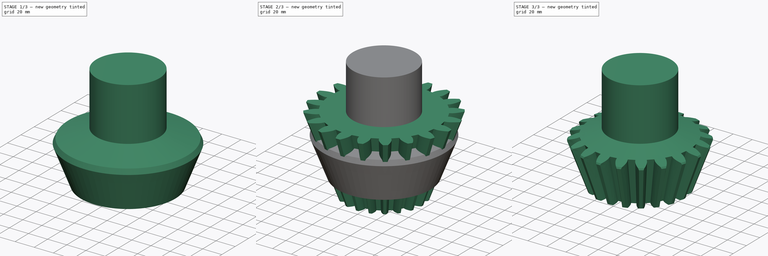
[diagram: build sequence overview — one tinted view per stage of 3, left to right]
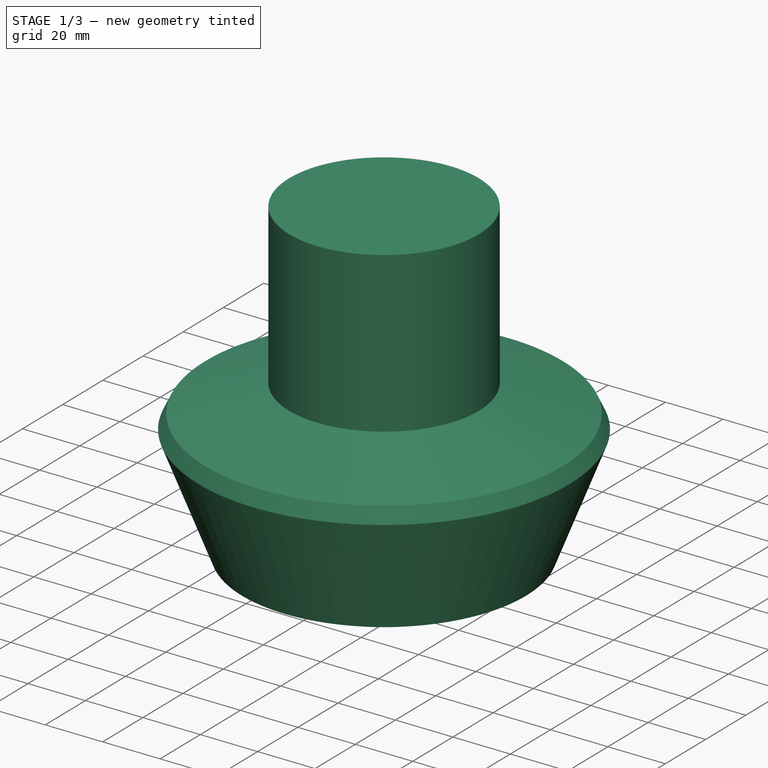
[diagram: stage 1 of 3 — iso view after this stage's code; geometry added in this stage tinted green]
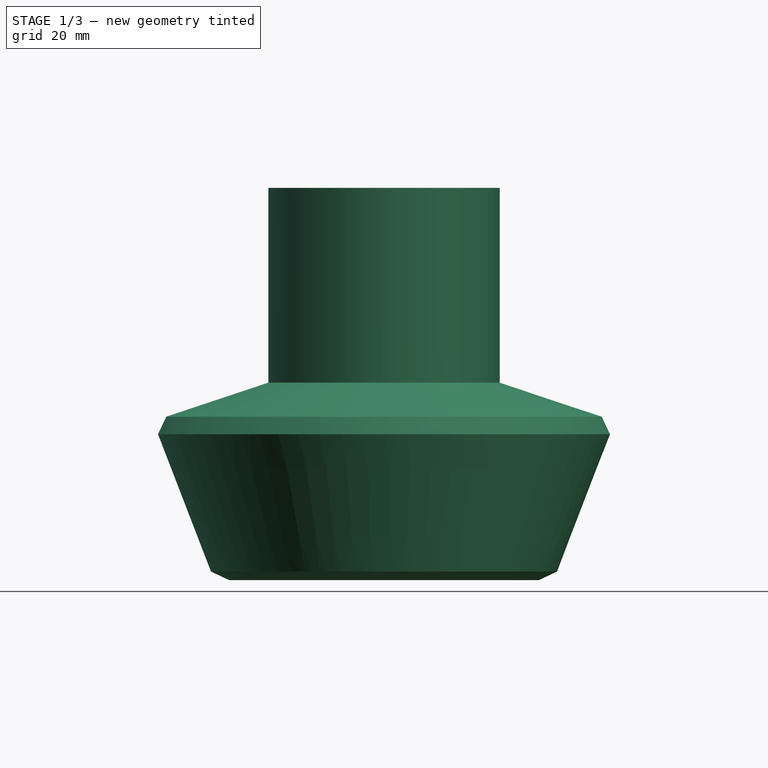
[diagram: stage 1 of 3 — front view after this stage's code; geometry added in this stage tinted green]
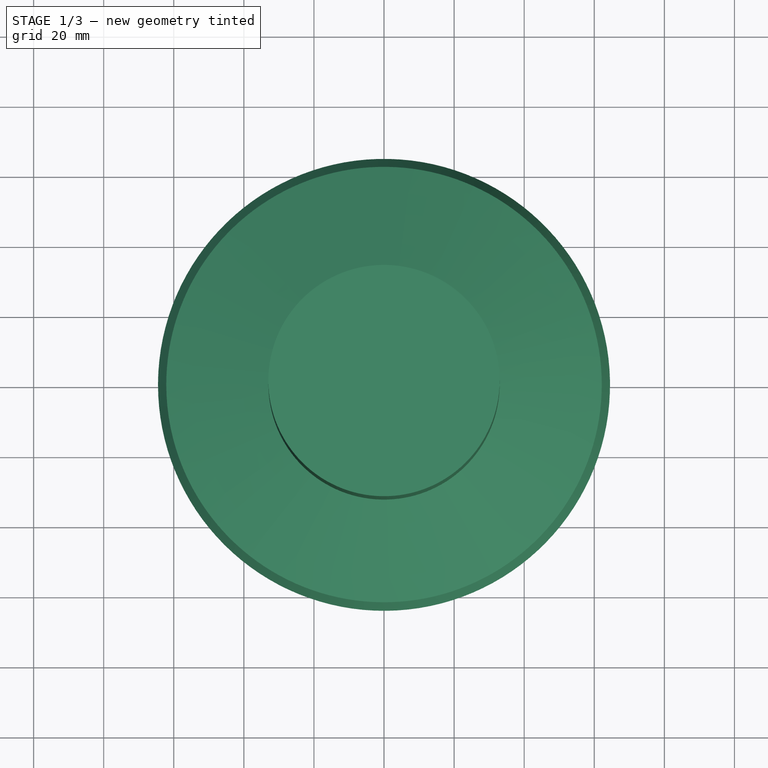
[diagram: stage 1 of 3 — top view after this stage's code; geometry added in this stage tinted green]
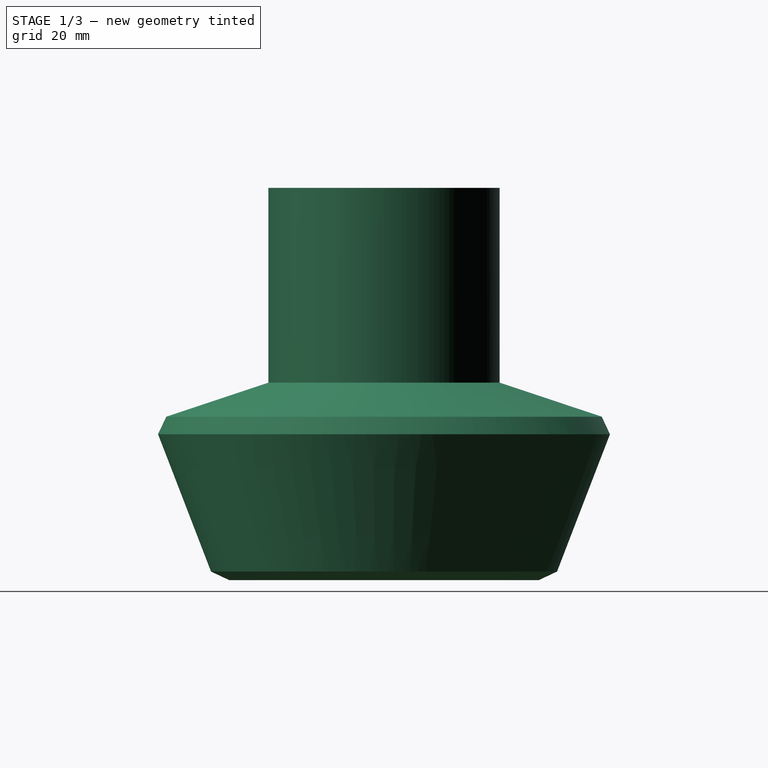
[diagram: stage 1 of 3 — right view after this stage's code; geometry added in this stage tinted green]
FCSTD DOCUMENT  (FreeCAD 0.16R5794 (Git))
Label: bevel_gear_example
License: All rights reserved
LicenseURL: http://en.wikipedia.org/wiki/All_rights_reserved
objects: Sketcher::SketchObject×2, Part::FeaturePython×1, PartDesign::Revolution×1, PartDesign::Pad×1, PartDesign::Chamfer×1, Part::MultiCommon×1
note: 9 computed .brp shape members not serialized (recipe doc carries the construction recipe); baked Part::Feature solids carry a one-line shape summary decoded from their .brp

FEATURE [Sketcher::SketchObject] Sketch
  Placement = pos=(0,0,0) rot=(-1,0,0;4.71239rad)
  sketch-geometry (13):
    g0: LineSegment [constr] StartX=0 StartY=0 StartZ=0 EndX=-77.0789 EndY=231.237 EndZ=0
    g1: LineSegment [constr] StartX=0 StartY=0 StartZ=0 EndX=-243.745 EndY=0 EndZ=0
    g2: LineSegment [constr] StartX=0 StartY=0 StartZ=0 EndX=0 EndY=243.745 EndZ=0
    g3: LineSegment [constr] StartX=-50 StartY=0 StartZ=0 EndX=-50 EndY=150 EndZ=0
    g4: LineSegment [constr] StartX=-50 StartY=150 StartZ=0 EndX=0 EndY=150 EndZ=0
    g5: LineSegment StartX=-65.9318 StartY=170.985 StartZ=0 EndX=-47.9429 EndY=124.333 EndZ=0
    g6: LineSegment StartX=-47.9429 StartY=124.333 StartZ=0 EndX=-24.0033 EndY=132.313 EndZ=0
    g7: LineSegment StartX=-24.0033 StartY=132.313 StartZ=0 EndX=0 EndY=132.313 EndZ=0
    g8: LineSegment StartX=0 StartY=132.313 StartZ=0 EndX=0 EndY=237.562 EndZ=0
    g9: LineSegment StartX=0 StartY=237.562 StartZ=0 EndX=-33.0097 EndY=237.562 EndZ=0
    g10: LineSegment StartX=-33.0097 StartY=237.562 StartZ=0 EndX=-33.0097 EndY=181.959 EndZ=0
    g11: LineSegment StartX=-33.0097 StartY=181.959 StartZ=0 EndX=-65.9318 EndY=170.985 EndZ=0
    g12: LineSegment [constr] StartX=-33.0097 StartY=181.959 StartZ=0 EndX=-24.0033 EndY=132.313 EndZ=0
  constraints (36):
    c: Coincident(g-1,g0)
    c: Coincident(g-1,g1)
    c: PointOnObject(g1,g-1)
    c: Equal(g2,g0)
    c: Equal(g0,g1)
    c: Coincident(g2,g-1)
    c: PointOnObject(g2,g-2)
    c: PointOnObject(g3,g1)
    c: PointOnObject(g3,g0)
    c: Coincident(g4,g3)
    c: PointOnObject(g4,g2)
    c: Perpendicular(g2,g4)
    c: Perpendicular(g1,g3)
    c: DistanceX(g4) = 50
    c: DistanceY(g3) = 150
    c: Angle(g2,g0) = 0.321751
    c: Coincident(g5,g6)
    c: Coincident(g6,g7)
    c: PointOnObject(g7,g2)
    c: Horizontal(g7)
    c: Coincident(g7,g8)
    c: PointOnObject(g8,g2)
    c: Coincident(g8,g9)
    c: Horizontal(g9)
    c: Coincident(g9,g10)
    c: Vertical(g10)
    c: Coincident(g10,g11)
    c: Coincident(g11,g5)
    c: PointOnObject(g-1,g5)
    c: Perpendicular(g0,g11)
    c: Perpendicular(g0,g6)
    c: Coincident(g12,g10)
    c: Coincident(g12,g6)
    c: PointOnObject(g-1,g12)
    c: Distance(g3,g6) = 25
    c: Distance(g5) = 50
FEATURE [PartDesign::Revolution] Revolution
  Angle = 360
  Axis = (0,0,1)
  Base = (0,0,0)
  Placement = pos=(0,0,0) rot=(-1,0,0;4.71239rad)
  ReferenceAxis = -> Sketch [V_Axis]
  Sketch = -> Sketch
FEATURE [PartDesign::Chamfer] Chamfer
  Base = -> Revolution [Edge2,Edge1]
  Placement = pos=(0,0,0) rot=(-1,0,0;4.71239rad)
  Size = 4
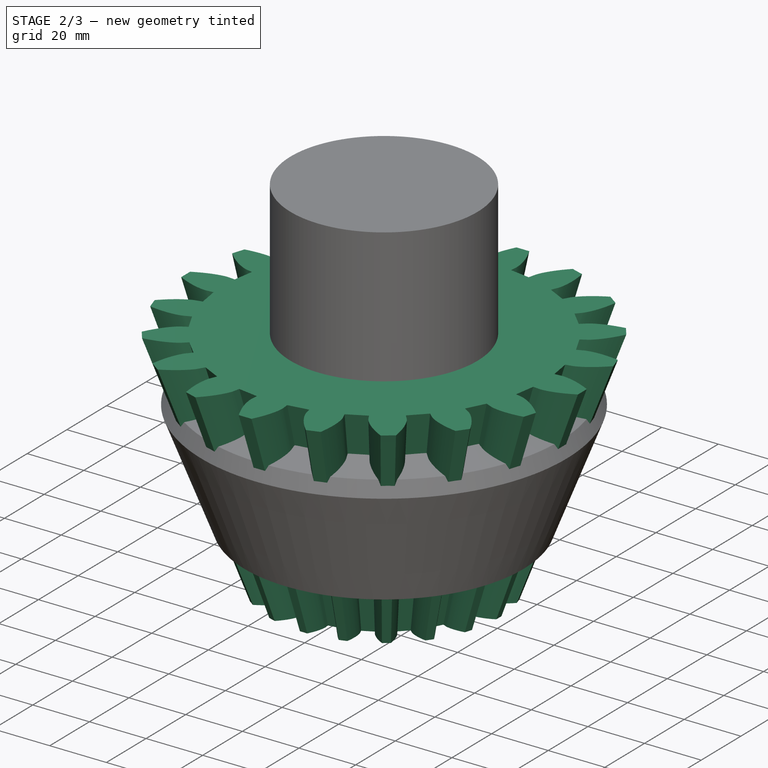
[diagram: stage 2 of 3 — iso view after this stage's code; geometry added in this stage tinted green]
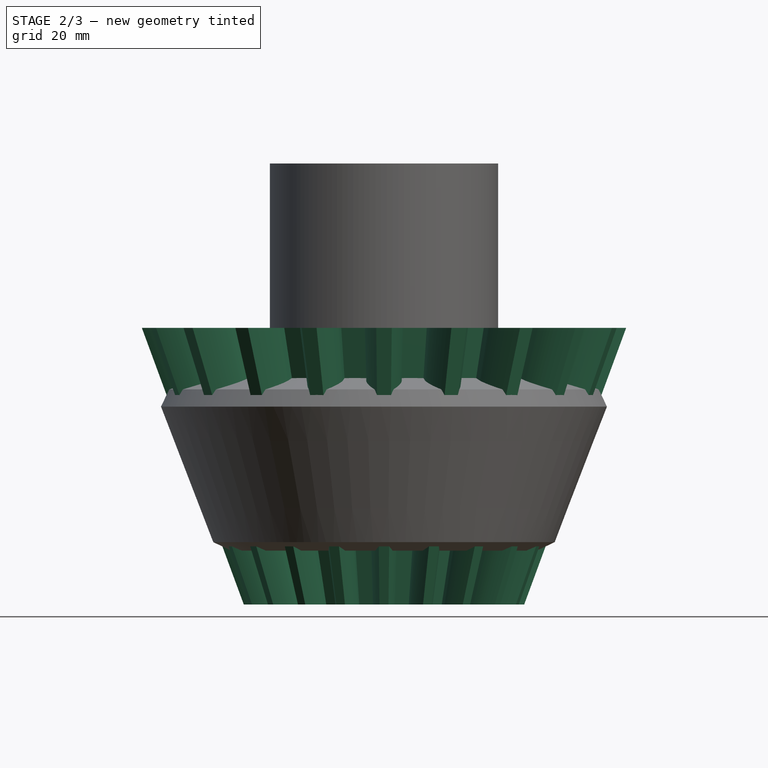
[diagram: stage 2 of 3 — front view after this stage's code; geometry added in this stage tinted green]
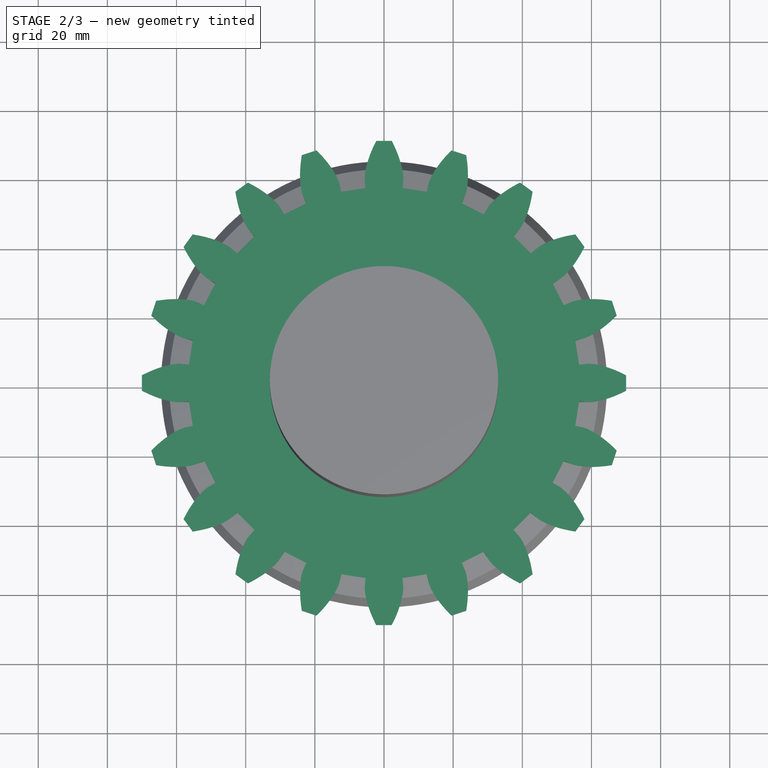
[diagram: stage 2 of 3 — top view after this stage's code; geometry added in this stage tinted green]
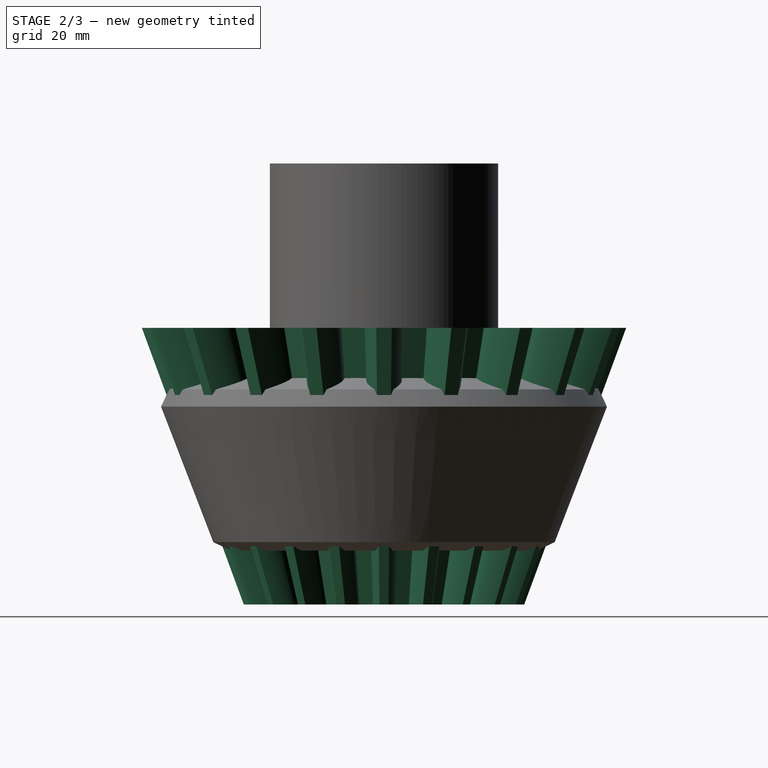
[diagram: stage 2 of 3 — right view after this stage's code; geometry added in this stage tinted green]
FEATURE [Part::FeaturePython] bevel_gear  # WARN: FeaturePython — macro-defined, semantics opaque (R4)
  backlash = 0
  clearance = 0.1
  height = 80
  m = 5
  numpoints = 6
  pitch_angle = 18.43
  pressure_angle = 20
  teeth = 20
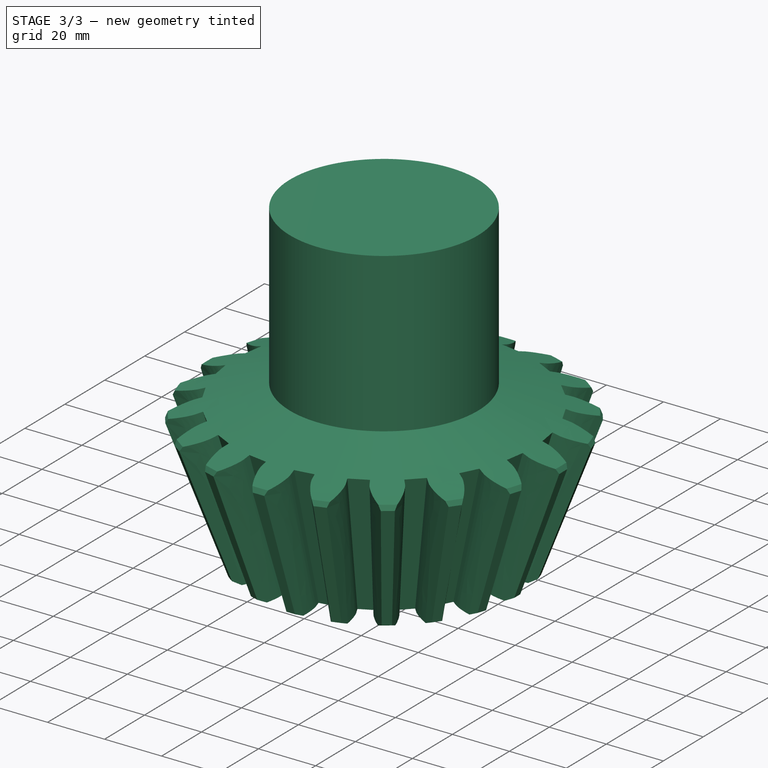
[diagram: stage 3 of 3 — iso view after this stage's code; geometry added in this stage tinted green]
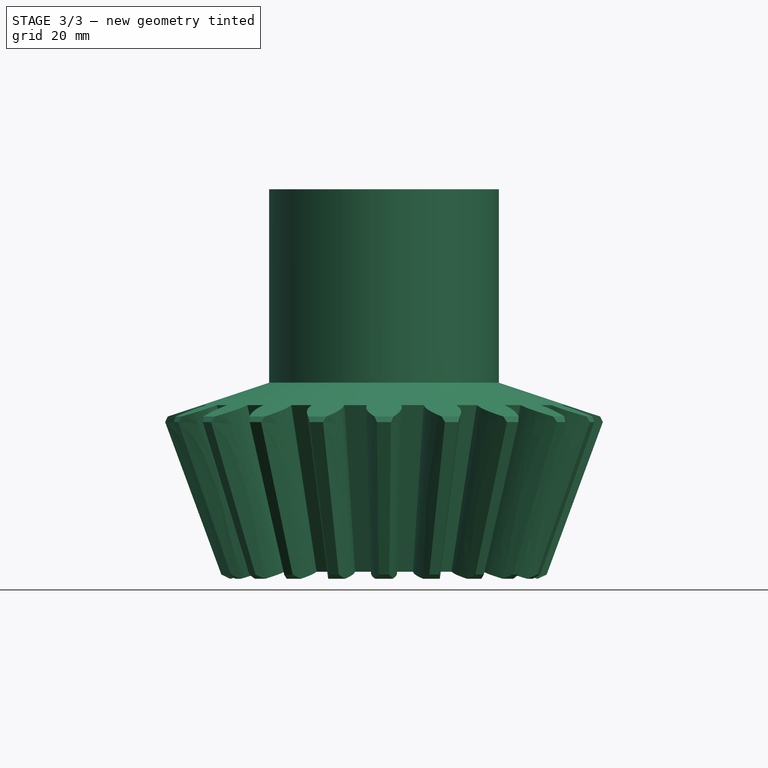
[diagram: stage 3 of 3 — front view after this stage's code; geometry added in this stage tinted green]
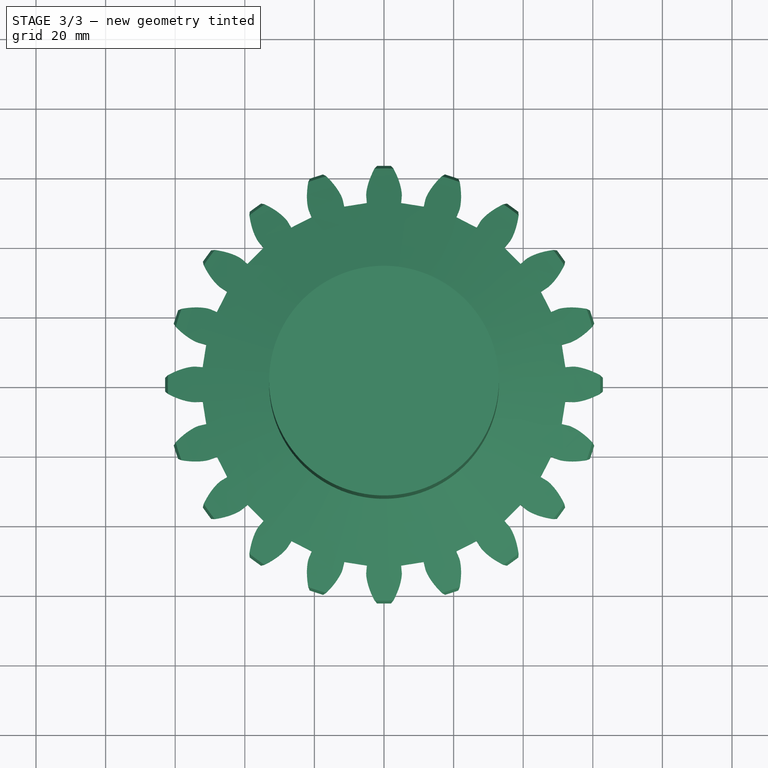
[diagram: stage 3 of 3 — top view after this stage's code; geometry added in this stage tinted green]
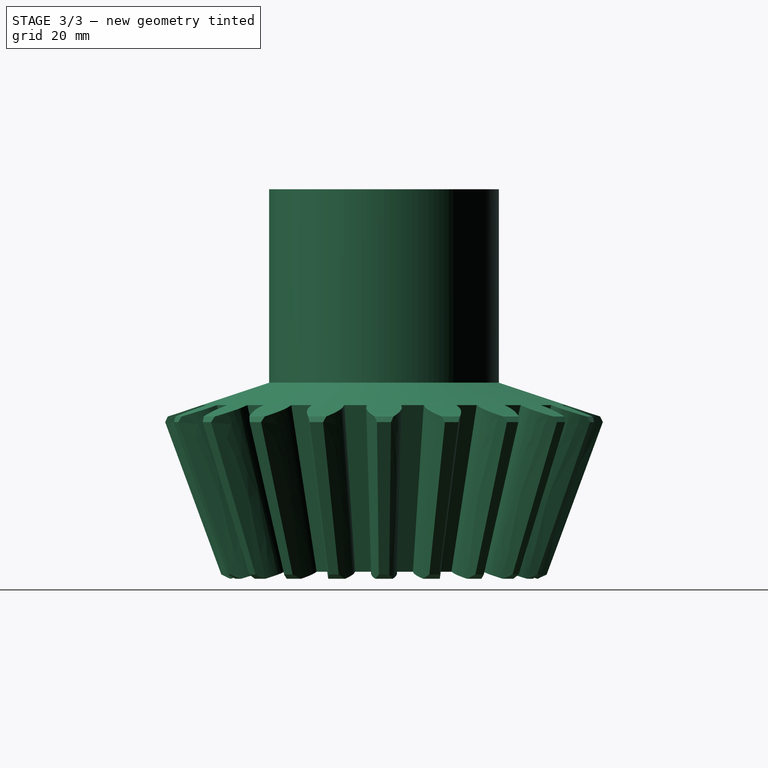
[diagram: stage 3 of 3 — right view after this stage's code; geometry added in this stage tinted green]
FEATURE [Sketcher::SketchObject] Sketch001
  Placement = pos=(0,0,190.043) rot=(0,0,1;0rad)
  Support = -> bevel_gear [Face122]
  sketch-geometry (1):
    g0: Circle CenterX=0 CenterY=0 CenterZ=0 NormalX=0 NormalY=0 NormalZ=1 Radius=44.7033
  constraints (1):
    c: Coincident(g0,g-1)
FEATURE [PartDesign::Pad] Pad
  Length = 60
  Length2 = 100
  Sketch = -> Sketch001
  Type = 0
FEATURE [Part::MultiCommon] Common
  Shapes = -> [Pad,Chamfer]
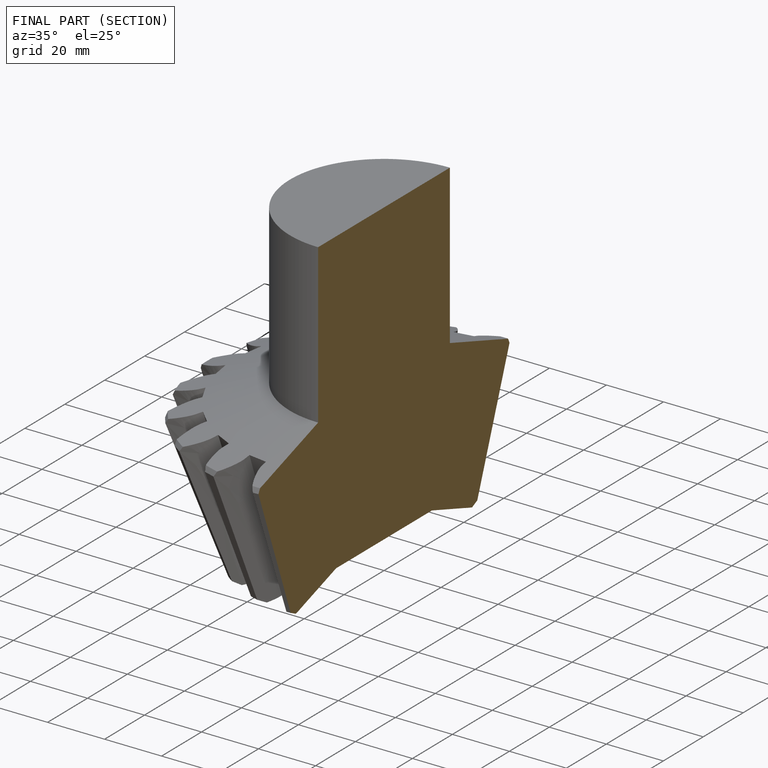
[diagram: finished part — half-section view (interior)]
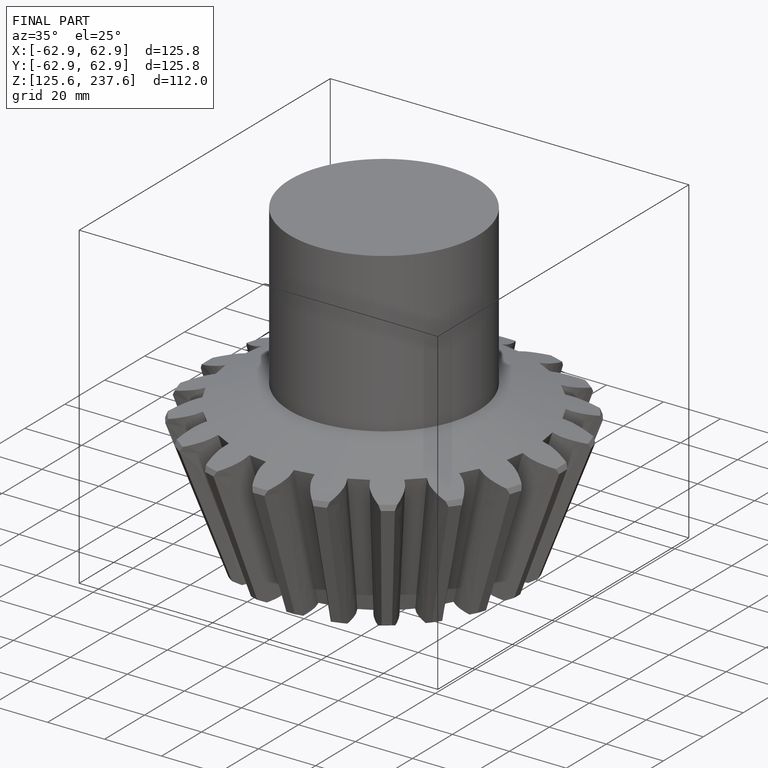
[diagram: finished part — iso view with bounding-box wireframe]
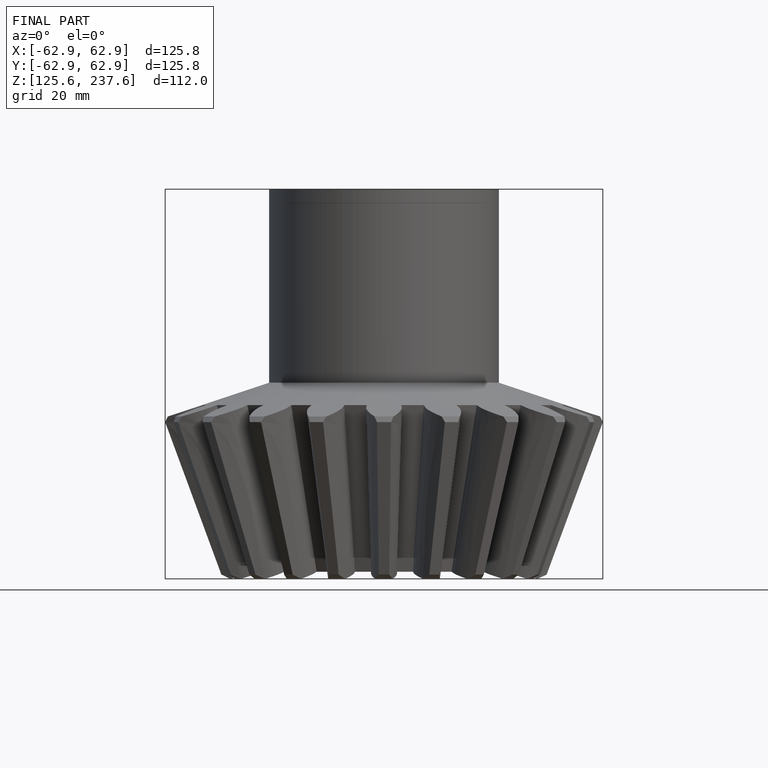
[diagram: finished part — front view with bounding-box wireframe]
